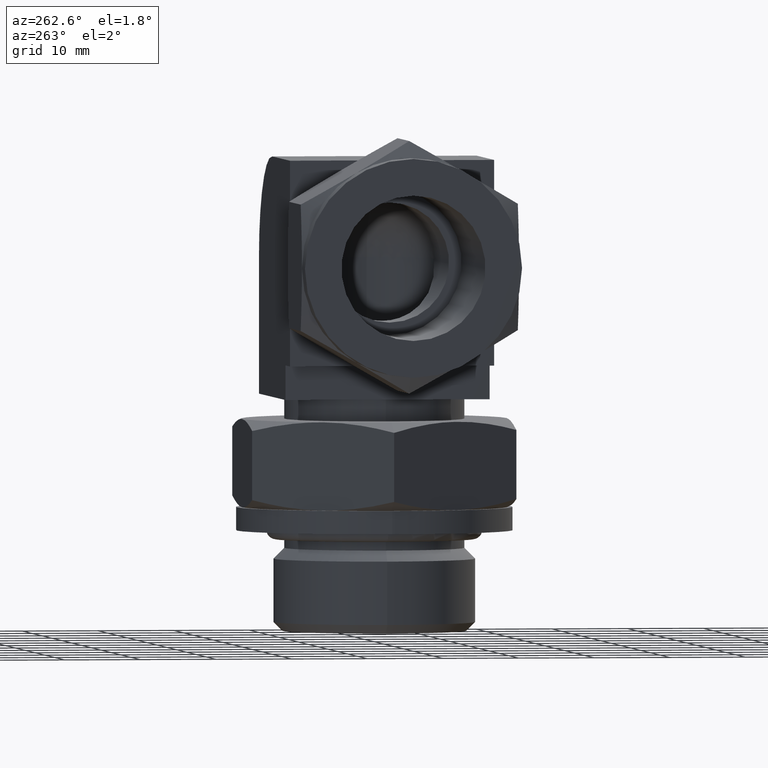
[diagram: clean part render]
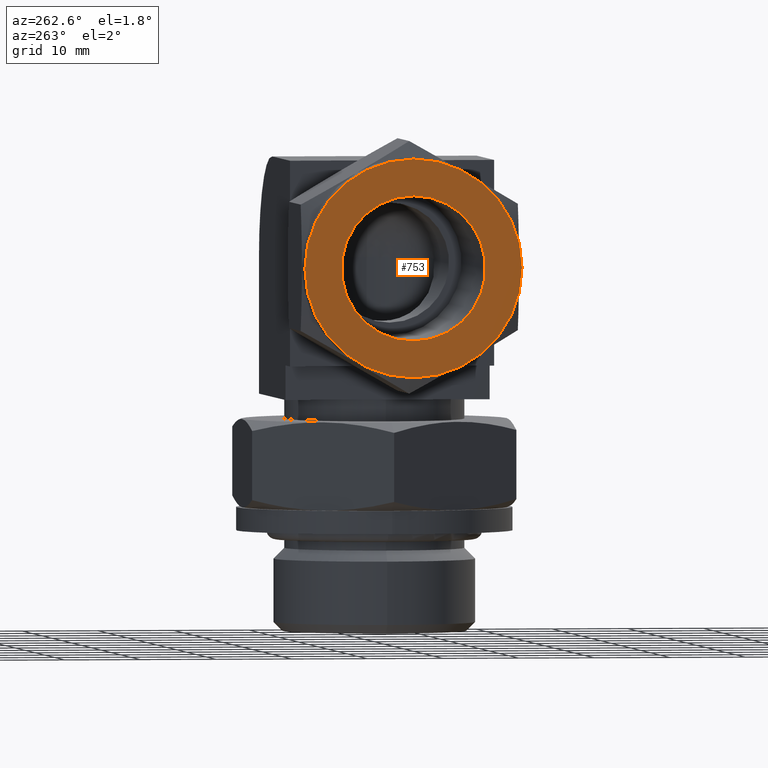
[diagram: same view with one face highlighted and labeled with its STEP entity id]
A machine part, auxiliary view. The second image highlights one B-rep face of the part: STEP entity #753.
In plain terms, the highlighted planar face has unit normal (-1, 0, -0).
Its self-contained STEP definition (entity closure, byte-faithful):
#14 = AXIS2_PLACEMENT_3D ( 'NONE', #763, #2476, #2093 ) ;
#119 = DIRECTION ( 'NONE',  ( -2.220446049250309876E-16, 0.000000000000000000, 1.000000000000000000 ) ) ;
#182 = CIRCLE ( 'NONE', #1640, 14.35099999999999909 ) ;
#256 = EDGE_LOOP ( 'NONE', ( #2430, #1098 ) ) ;
#500 = VERTEX_POINT ( 'NONE', #1305 ) ;
#512 = VERTEX_POINT ( 'NONE', #2091 ) ;
#697 = DIRECTION ( 'NONE',  ( -2.220446049250309876E-16, 0.000000000000000000, 1.000000000000000000 ) ) ;
#721 = EDGE_CURVE ( 'NONE', #1185, #2239, #1510, .T. ) ;
#753 = ADVANCED_FACE ( 'NONE', ( #1475, #1856 ), #1238, .T. ) ;
#763 = CARTESIAN_POINT ( 'NONE',  ( -2.819966482547900216E-15, 0.000000000000000000, -1.565395858797950031E-31 ) ) ;
#910 = DIRECTION ( 'NONE',  ( 1.000000000000000000, 0.000000000000000000, 6.123031769111888756E-17 ) ) ;
#1091 = EDGE_LOOP ( 'NONE', ( #1942, #2482 ) ) ;
#1098 = ORIENTED_EDGE ( 'NONE', *, *, #2264, .F. ) ;
#1110 = CARTESIAN_POINT ( 'NONE',  ( 0.000000000000000000, 0.000000000000000000, -4.850342349982379426E-15 ) ) ;
#1116 = CIRCLE ( 'NONE', #14, 9.525000000000000355 ) ;
#1149 = AXIS2_PLACEMENT_3D ( 'NONE', #2007, #910, #2441 ) ;
#1185 = VERTEX_POINT ( 'NONE', #2422 ) ;
#1238 = PLANE ( 'NONE',  #2157 ) ;
#1277 = DIRECTION ( 'NONE',  ( -1.000000000000000000, 0.000000000000000000, -2.220446049250309876E-16 ) ) ;
#1280 = EDGE_CURVE ( 'NONE', #2239, #1185, #1116, .T. ) ;
#1305 = CARTESIAN_POINT ( 'NONE',  ( 3.186562125279119762E-15, -1.757432578370490034E-15, -14.35099999999999909 ) ) ;
#1386 = DIRECTION ( 'NONE',  ( 1.000000000000000000, 0.000000000000000000, 2.220446049250309876E-16 ) ) ;
#1475 = FACE_OUTER_BOUND ( 'NONE', #256, .T. ) ;
#1510 = CIRCLE ( 'NONE', #1149, 9.525000000000000355 ) ;
#1593 = CARTESIAN_POINT ( 'NONE',  ( 0.000000000000000000, 0.000000000000000000, -4.850342349982379426E-15 ) ) ;
#1640 = AXIS2_PLACEMENT_3D ( 'NONE', #1593, #1386, #1744 ) ;
#1652 = AXIS2_PLACEMENT_3D ( 'NONE', #1110, #1840, #697 ) ;
#1669 = CARTESIAN_POINT ( 'NONE',  ( -2.819966482547900216E-15, 1.337515059644799985E-15, 7.175499999999999545 ) ) ;
#1744 = DIRECTION ( 'NONE',  ( -2.220446049250309876E-16, 0.000000000000000000, 1.000000000000000000 ) ) ;
#1768 = EDGE_CURVE ( 'NONE', #512, #500, #182, .T. ) ;
#1840 = DIRECTION ( 'NONE',  ( 1.000000000000000000, 0.000000000000000000, 2.220446049250309876E-16 ) ) ;
#1856 = FACE_BOUND ( 'NONE', #1091, .T. ) ;
#1942 = ORIENTED_EDGE ( 'NONE', *, *, #1280, .T. ) ;
#2007 = CARTESIAN_POINT ( 'NONE',  ( -2.819966482547900216E-15, 0.000000000000000000, -1.565395858797950031E-31 ) ) ;
#2091 = CARTESIAN_POINT ( 'NONE',  ( -2.819966482547900216E-15, 1.337515059644799985E-15, 14.35099999999999909 ) ) ;
#2093 = DIRECTION ( 'NONE',  ( 6.123031769111891221E-17, 0.000000000000000000, -1.000000000000000000 ) ) ;
#2157 = AXIS2_PLACEMENT_3D ( 'NONE', #1669, #1277, #119 ) ;
#2217 = CIRCLE ( 'NONE', #1652, 14.35099999999999909 ) ;
#2239 = VERTEX_POINT ( 'NONE', #2271 ) ;
#2264 = EDGE_CURVE ( 'NONE', #500, #512, #2217, .T. ) ;
#2271 = CARTESIAN_POINT ( 'NONE',  ( 5.832187760079070312E-16, 0.000000000000000000, -9.525000000000000355 ) ) ;
#2422 = CARTESIAN_POINT ( 'NONE',  ( -5.667688540711419879E-15, 1.166437552015810118E-15, 9.525000000000000355 ) ) ;
#2430 = ORIENTED_EDGE ( 'NONE', *, *, #1768, .F. ) ;
#2441 = DIRECTION ( 'NONE',  ( 6.123031769111891221E-17, 0.000000000000000000, -1.000000000000000000 ) ) ;
#2476 = DIRECTION ( 'NONE',  ( 1.000000000000000000, 0.000000000000000000, 6.123031769111888756E-17 ) ) ;
#2482 = ORIENTED_EDGE ( 'NONE', *, *, #721, .T. ) ;